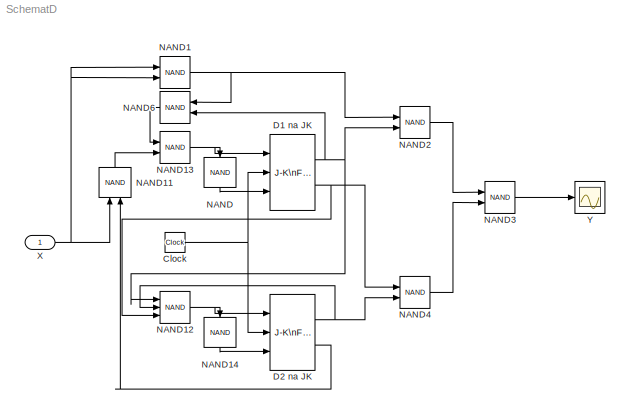
MODEL SchematD
KIND model
BLOCK [Clock] Clock
  SID = 5
BLOCK [Reference] D1 na JK  REF=simulink_extras/Flip Flops/J-K\nFlip-Flop
  Ports = [3, 2]
  SID = 1
  SourceBlock = simulink_extras/Flip Flops/J-K\nFlip-Flop
  SourceProductBaseCode = SL
  SourceProductName = Simulink
  SourceType = JKFlipFlop
  initial_condition = 0
BLOCK [Reference] D2 na JK  REF=simulink_extras/Flip Flops/J-K\nFlip-Flop
  Ports = [3, 2]
  SID = 2
  SourceBlock = simulink_extras/Flip Flops/J-K\nFlip-Flop
  SourceProductBaseCode = SL
  SourceProductName = Simulink
  SourceType = JKFlipFlop
  initial_condition = 0
BLOCK [Logic] NAND
  AllPortsSameDT = off
  IconShape = distinctive
  Inputs = 1
  Operator = NAND
  OutDataTypeStr = boolean
  Ports = [1, 1]
  SID = 6
BLOCK [Logic] NAND1
  AllPortsSameDT = off
  IconShape = distinctive
  Operator = NAND
  OutDataTypeStr = boolean
  Ports = [2, 1]
  SID = 7
BLOCK [Logic] NAND11
  AllPortsSameDT = off
  IconShape = distinctive
  Operator = NAND
  OutDataTypeStr = boolean
  Ports = [2, 1]
  SID = 17
BLOCK [Logic] NAND12
  AllPortsSameDT = off
  IconShape = distinctive
  Inputs = 3
  Operator = NAND
  OutDataTypeStr = boolean
  Ports = [3, 1]
  SID = 18
BLOCK [Logic] NAND13
  AllPortsSameDT = off
  IconShape = distinctive
  Operator = NAND
  OutDataTypeStr = boolean
  Ports = [2, 1]
  SID = 19
BLOCK [Logic] NAND14
  AllPortsSameDT = off
  IconShape = distinctive
  Inputs = 1
  Operator = NAND
  OutDataTypeStr = boolean
  Ports = [1, 1]
  SID = 20
BLOCK [Logic] NAND2
  AllPortsSameDT = off
  IconShape = distinctive
  Operator = NAND
  OutDataTypeStr = boolean
  Ports = [2, 1]
  SID = 8
BLOCK [Logic] NAND3
  AllPortsSameDT = off
  IconShape = distinctive
  Operator = NAND
  OutDataTypeStr = boolean
  Ports = [2, 1]
  SID = 9
BLOCK [Logic] NAND4
  AllPortsSameDT = off
  IconShape = distinctive
  Operator = NAND
  OutDataTypeStr = boolean
  Ports = [2, 1]
  SID = 10
BLOCK [Logic] NAND6
  AllPortsSameDT = off
  IconShape = distinctive
  Operator = NAND
  OutDataTypeStr = boolean
  Ports = [2, 1]
  SID = 12
BLOCK [Inport] X
  IconDisplay = Port number
  SID = 4
BLOCK [Scope] Y
  Floating = off
  NumInputPorts = 1
  Ports = [1]
  SID = 3
  ScopeSpecificationString = Simulink.scopes.TimeScopeBlockCfg('CurrentConfiguration', extmgr.ConfigurationSet(extmgr.Configuration('Core','General UI',true),extmgr.Configuration('Core','Source UI',true),extmgr.Configuration('Sources','WiredSimulink',true),extmgr.Configuration('Visuals','Time Domain',true),extmgr.Configuration('Tools','Plot Navigation',true),extmgr.Configuration('Tools','Measurements',true)),'Version','2018b'...<+1ch>
NET Clock:1 -> D1 na JK:2, D2 na JK:2
NET D1 na JK:1 -> NAND12:1, NAND2:2, NAND6:2
NET D1 na JK:2 -> NAND12:3, NAND4:1
NET D2 na JK:1 -> NAND12:2, NAND4:2
LINE D2 na JK:2 -> NAND11:2
LINE NAND11:1 -> NAND13:2
NET NAND12:1 -> D2 na JK:1, NAND14:1
NET NAND13:1 -> D1 na JK:1, NAND:1
LINE NAND14:1 -> D2 na JK:3
NET NAND1:1 -> NAND2:1, NAND6:1
LINE NAND2:1 -> NAND3:1
LINE NAND3:1 -> Y:1
LINE NAND4:1 -> NAND3:2
LINE NAND6:1 -> NAND13:1
LINE NAND:1 -> D1 na JK:3
NET X:1 -> NAND11:1, NAND1:1, NAND1:2
note: NET lines group one-source signal fan-out (src -> all destinations, sorted); 1:1 wires keep LINE
